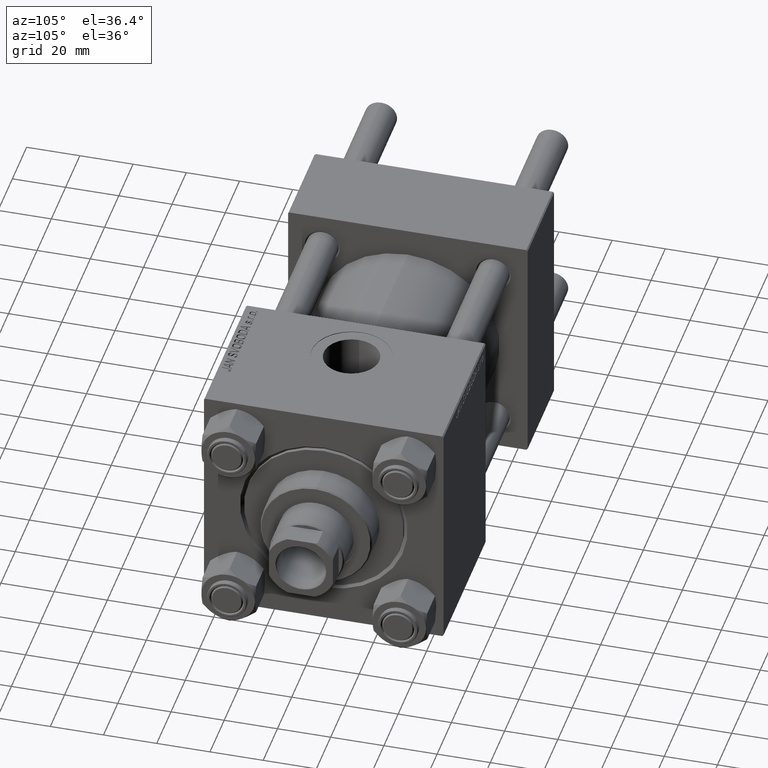
[diagram: clean part render]
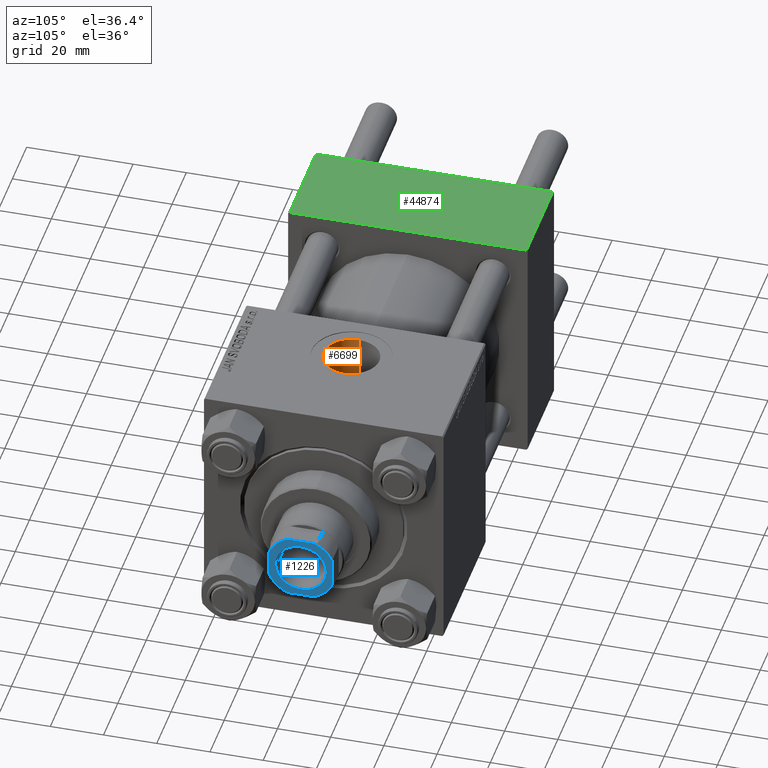
[diagram: same view with three faces highlighted in distinct colors, each labeled with its STEP entity id]
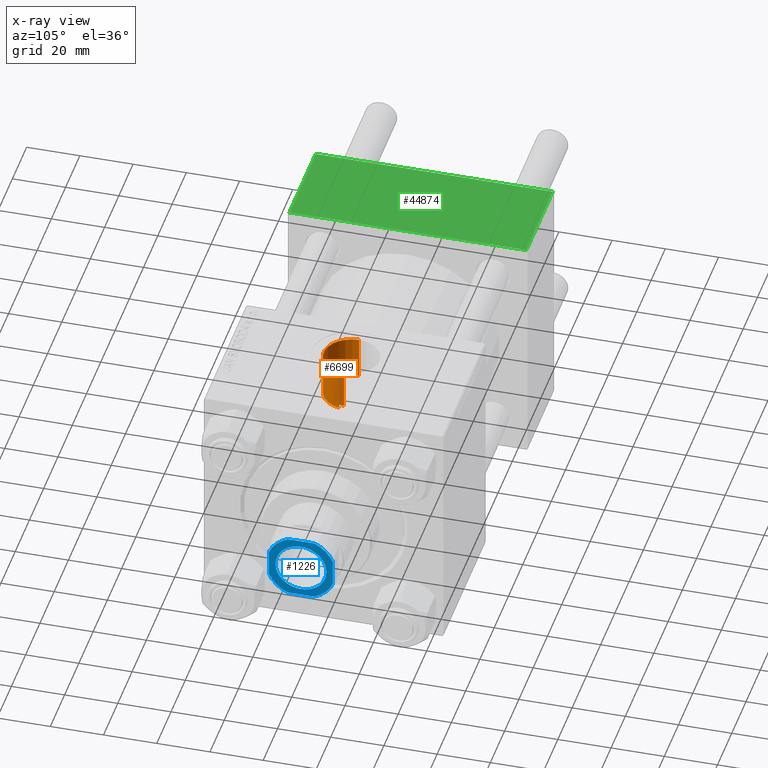
[diagram: x-ray of the same camera — body ghosted, the three highlighted faces saturated]
A machine part, auxiliary view with three faces highlighted in distinct colors.
The next image is the same camera in x-ray (body ghosted, the three faces saturated) — at least one of them is partly hidden behind the body in this view.
Their STEP definitions:

[orange] entity #6699 — the highlighted cylindrical surface (edge-blend (fillet) strip) has radius 10.48 mm, axis along (0, 0, -1).
#297 = DIRECTION ( 'NONE',  ( -0.000000000000000000, -0.000000000000000000, 1.000000000000000000 ) ) ;
#653 = EDGE_CURVE ( 'NONE', #38131, #39884, #43769, .T. ) ;
#1130 = ORIENTED_EDGE ( 'NONE', *, *, #653, .F. ) ;
#1406 = DIRECTION ( 'NONE',  ( 0.000000000000000000, 0.000000000000000000, -1.000000000000000000 ) ) ;
#2041 = CARTESIAN_POINT ( 'NONE',  ( 126.4210485436893237, -1.289340916902936396, 29.97924172559974210 ) ) ;
#2803 = CIRCLE ( 'NONE', #47059, 10.48000000000000398 ) ;
#2824 = DIRECTION ( 'NONE',  ( -0.000000000000000000, -0.000000000000000000, -1.000000000000000000 ) ) ;
#3183 = CARTESIAN_POINT ( 'NONE',  ( 105.5199999999999960, -6.938893903907227589E-15, 44.79999999999999005 ) ) ;
#3203 = ORIENTED_EDGE ( 'NONE', *, *, #15543, .F. ) ;
#6699 = ADVANCED_FACE ( 'NONE', ( #9166 ), #47954, .F. ) ;
#6996 = ORIENTED_EDGE ( 'NONE', *, *, #28028, .T. ) ;
#7841 = CARTESIAN_POINT ( 'NONE',  ( 126.2999999999999972, -1.934011375354403928, 67.79999999999999716 ) ) ;
#8244 = ORIENTED_EDGE ( 'NONE', *, *, #8788, .T. ) ;
#8387 = DIRECTION ( 'NONE',  ( 0.000000000000000000, 0.000000000000000000, 1.000000000000000000 ) ) ;
#8788 = EDGE_CURVE ( 'NONE', #21145, #31034, #10842, .T. ) ;
#9166 = FACE_OUTER_BOUND ( 'NONE', #16298, .T. ) ;
#10842 = LINE ( 'NONE', #44579, #21041 ) ;
#12644 = CARTESIAN_POINT ( 'NONE',  ( 126.4800000000000040, -0.6446704584514658665, 30.00000000000000000 ) ) ;
#15058 = VECTOR ( 'NONE', #1406, 1000.000000000000000 ) ;
#15295 = EDGE_CURVE ( 'NONE', #32601, #38131, #2803, .T. ) ;
#15543 = EDGE_CURVE ( 'NONE', #21145, #32694, #47844, .T. ) ;
#16298 = EDGE_LOOP ( 'NONE', ( #3203, #8244, #6996, #1130, #34910, #16418 ) ) ;
#16418 = ORIENTED_EDGE ( 'NONE', *, *, #21393, .F. ) ;
#18992 = DIRECTION ( 'NONE',  ( 1.000000000000000000, 0.000000000000000000, 0.000000000000000000 ) ) ;
#20211 = CARTESIAN_POINT ( 'NONE',  ( 126.4800000000000040, 3.352779466116923030E-15, 30.00000000000000000 ) ) ;
#20553 = LINE ( 'NONE', #35920, #15058 ) ;
#21041 = VECTOR ( 'NONE', #41566, 1000.000000000000000 ) ;
#21145 = VERTEX_POINT ( 'NONE', #29164 ) ;
#21393 = EDGE_CURVE ( 'NONE', #32694, #32601, #20553, .T. ) ;
#24558 = CARTESIAN_POINT ( 'NONE',  ( 116.0000000000000000, -6.938893903907227589E-15, 67.79999999999999716 ) ) ;
#26934 = AXIS2_PLACEMENT_3D ( 'NONE', #37332, #2824, #33558 ) ;
#27877 = B_SPLINE_CURVE_WITH_KNOTS ( 'NONE', 3,
 ( #31808, #12644, #2041, #28502 ),
 .UNSPECIFIED., .F., .F.,
 ( 4, 4 ),
 ( 0.001934011375354386698, 0.003868022750708794213 ),
 .UNSPECIFIED. ) ;
#28028 = EDGE_CURVE ( 'NONE', #31034, #39884, #27877, .T. ) ;
#28081 = DIRECTION ( 'NONE',  ( 0.000000000000000000, 0.000000000000000000, -1.000000000000000000 ) ) ;
#28502 = CARTESIAN_POINT ( 'NONE',  ( 126.2999999999999972, -1.934011375354403928, 29.93759509379468753 ) ) ;
#29164 = CARTESIAN_POINT ( 'NONE',  ( 126.4800000000000040, -5.655464058400802100E-15, 44.79999999999999005 ) ) ;
#30591 = CARTESIAN_POINT ( 'NONE',  ( 116.0000000000000000, -6.938893903907227589E-15, 28.59999999999998721 ) ) ;
#30628 = AXIS2_PLACEMENT_3D ( 'NONE', #24558, #28081, #48207 ) ;
#31034 = VERTEX_POINT ( 'NONE', #20211 ) ;
#31808 = CARTESIAN_POINT ( 'NONE',  ( 126.4800000000000040, 3.352779466116923030E-15, 30.00000000000000000 ) ) ;
#32601 = VERTEX_POINT ( 'NONE', #38180 ) ;
#32694 = VERTEX_POINT ( 'NONE', #3183 ) ;
#33558 = DIRECTION ( 'NONE',  ( 1.000000000000000000, 0.000000000000000000, 0.000000000000000000 ) ) ;
#34910 = ORIENTED_EDGE ( 'NONE', *, *, #15295, .F. ) ;
#35259 = VECTOR ( 'NONE', #297, 1000.000000000000000 ) ;
#35920 = CARTESIAN_POINT ( 'NONE',  ( 105.5199999999999960, -6.938893903907227589E-15, 67.79999999999999716 ) ) ;
#37332 = CARTESIAN_POINT ( 'NONE',  ( 116.0000000000000000, -6.938893903907227589E-15, 44.79999999999999005 ) ) ;
#38131 = VERTEX_POINT ( 'NONE', #41127 ) ;
#38180 = CARTESIAN_POINT ( 'NONE',  ( 105.5199999999999960, -6.938893903907227589E-15, 28.59999999999998721 ) ) ;
#38877 = CARTESIAN_POINT ( 'NONE',  ( 126.2999999999999972, -1.934011375354403928, 29.93759509379468753 ) ) ;
#39884 = VERTEX_POINT ( 'NONE', #38877 ) ;
#41127 = CARTESIAN_POINT ( 'NONE',  ( 126.2999999999999972, -1.934011375354403928, 28.59999999999998721 ) ) ;
#41566 = DIRECTION ( 'NONE',  ( 0.000000000000000000, 0.000000000000000000, -1.000000000000000000 ) ) ;
#43769 = LINE ( 'NONE', #7841, #35259 ) ;
#44579 = CARTESIAN_POINT ( 'NONE',  ( 126.4800000000000040, -5.655464058400801311E-15, 67.79999999999999716 ) ) ;
#47059 = AXIS2_PLACEMENT_3D ( 'NONE', #30591, #8387, #18992 ) ;
#47844 = CIRCLE ( 'NONE', #26934, 10.48000000000000398 ) ;
#47954 = CYLINDRICAL_SURFACE ( 'NONE', #30628, 10.48000000000000398 ) ;
#48207 = DIRECTION ( 'NONE',  ( -1.000000000000000000, 0.000000000000000000, 0.000000000000000000 ) ) ;

[blue] entity #1226 — the highlighted planar face has unit normal (1, 0, -0).
#582 = CARTESIAN_POINT ( 'NONE',  ( 9.550000000000030909, 0.000000000000000000, 150.0000000000000000 ) ) ;
#855 = CIRCLE ( 'NONE', #7290, 12.99999999999999289 ) ;
#1226 = ADVANCED_FACE ( 'NONE', ( #32324, #44633 ), #24768, .T. ) ;
#2163 = DIRECTION ( 'NONE',  ( -0.000000000000000000, 0.000000000000000000, 1.000000000000000000 ) ) ;
#2797 = DIRECTION ( 'NONE',  ( 1.000000000000000000, 0.000000000000000000, 0.000000000000000000 ) ) ;
#4310 = CARTESIAN_POINT ( 'NONE',  ( 11.99999999999999822, 4.999999999999885425, 150.0000000000000000 ) ) ;
#5485 = EDGE_CURVE ( 'NONE', #47178, #8607, #39410, .T. ) ;
#5617 = CARTESIAN_POINT ( 'NONE',  ( -12.00000000000000000, 11.99999999999999645, 150.0000000000000000 ) ) ;
#6123 = LINE ( 'NONE', #5617, #10189 ) ;
#6314 = CARTESIAN_POINT ( 'NONE',  ( -9.550000000000030909, 1.169537693185725911E-15, 150.0000000000000000 ) ) ;
#6350 = CARTESIAN_POINT ( 'NONE',  ( 0.000000000000000000, 0.000000000000000000, 150.0000000000000000 ) ) ;
#7066 = DIRECTION ( 'NONE',  ( 1.000000000000000000, 0.000000000000000000, 0.000000000000000000 ) ) ;
#7290 = AXIS2_PLACEMENT_3D ( 'NONE', #30159, #15025, #18809 ) ;
#7738 = ORIENTED_EDGE ( 'NONE', *, *, #28617, .T. ) ;
#7790 = CIRCLE ( 'NONE', #25493, 9.550000000000030909 ) ;
#8451 = EDGE_LOOP ( 'NONE', ( #45797, #15811, #11006, #40101, #38491, #43081, #7738, #35660 ) ) ;
#8607 = VERTEX_POINT ( 'NONE', #14734 ) ;
#10056 = VERTEX_POINT ( 'NONE', #37554 ) ;
#10189 = VECTOR ( 'NONE', #21501, 1000.000000000000000 ) ;
#10309 = DIRECTION ( 'NONE',  ( 1.000000000000000000, 0.000000000000000000, 0.000000000000000000 ) ) ;
#10440 = CARTESIAN_POINT ( 'NONE',  ( 12.00000000000000178, -5.000000000000104805, 150.0000000000000000 ) ) ;
#10792 = VERTEX_POINT ( 'NONE', #6314 ) ;
#10992 = VERTEX_POINT ( 'NONE', #10440 ) ;
#11006 = ORIENTED_EDGE ( 'NONE', *, *, #47522, .T. ) ;
#11244 = VERTEX_POINT ( 'NONE', #45651 ) ;
#12026 = AXIS2_PLACEMENT_3D ( 'NONE', #40823, #33028, #2797 ) ;
#13170 = DIRECTION ( 'NONE',  ( -0.000000000000000000, 0.000000000000000000, 1.000000000000000000 ) ) ;
#13498 = CARTESIAN_POINT ( 'NONE',  ( 0.000000000000000000, 0.000000000000000000, 150.0000000000000000 ) ) ;
#13856 = LINE ( 'NONE', #21666, #15610 ) ;
#14196 = DIRECTION ( 'NONE',  ( 1.000000000000000000, 0.000000000000000000, 0.000000000000000000 ) ) ;
#14734 = CARTESIAN_POINT ( 'NONE',  ( 4.999999999999889866, 11.99999999999999645, 150.0000000000000000 ) ) ;
#15025 = DIRECTION ( 'NONE',  ( -0.000000000000000000, 0.000000000000000000, 1.000000000000000000 ) ) ;
#15610 = VECTOR ( 'NONE', #41056, 1000.000000000000000 ) ;
#15811 = ORIENTED_EDGE ( 'NONE', *, *, #5485, .T. ) ;
#16538 = ORIENTED_EDGE ( 'NONE', *, *, #46200, .T. ) ;
#18809 = DIRECTION ( 'NONE',  ( 1.000000000000000000, 0.000000000000000000, 0.000000000000000000 ) ) ;
#19271 = EDGE_CURVE ( 'NONE', #10792, #36055, #7790, .T. ) ;
#20399 = CIRCLE ( 'NONE', #48545, 9.550000000000030909 ) ;
#21501 = DIRECTION ( 'NONE',  ( 7.228014483236695816E-17, -1.000000000000000000, 0.000000000000000000 ) ) ;
#21558 = AXIS2_PLACEMENT_3D ( 'NONE', #41547, #25948, #10309 ) ;
#21666 = CARTESIAN_POINT ( 'NONE',  ( 11.99999999999999645, 11.99999999999999645, 150.0000000000000000 ) ) ;
#22762 = CARTESIAN_POINT ( 'NONE',  ( -11.99999999999999822, -12.00000000000000355, 150.0000000000000000 ) ) ;
#24356 = EDGE_CURVE ( 'NONE', #46097, #30580, #6123, .T. ) ;
#24768 = PLANE ( 'NONE',  #38520 ) ;
#25493 = AXIS2_PLACEMENT_3D ( 'NONE', #32781, #48129, #7066 ) ;
#25948 = DIRECTION ( 'NONE',  ( -0.000000000000000000, 0.000000000000000000, 1.000000000000000000 ) ) ;
#26347 = CARTESIAN_POINT ( 'NONE',  ( -12.00000000000000000, -5.000000000000094147, 150.0000000000000000 ) ) ;
#27336 = AXIS2_PLACEMENT_3D ( 'NONE', #13498, #2163, #32163 ) ;
#27518 = EDGE_CURVE ( 'NONE', #30580, #31896, #43280, .T. ) ;
#28617 = EDGE_CURVE ( 'NONE', #31896, #11244, #41402, .T. ) ;
#29627 = EDGE_LOOP ( 'NONE', ( #16538, #30189 ) ) ;
#30159 = CARTESIAN_POINT ( 'NONE',  ( 0.000000000000000000, 0.000000000000000000, 150.0000000000000000 ) ) ;
#30189 = ORIENTED_EDGE ( 'NONE', *, *, #19271, .T. ) ;
#30580 = VERTEX_POINT ( 'NONE', #26347 ) ;
#31162 = EDGE_CURVE ( 'NONE', #11244, #10992, #42590, .T. ) ;
#31896 = VERTEX_POINT ( 'NONE', #34592 ) ;
#32163 = DIRECTION ( 'NONE',  ( 1.000000000000000000, 0.000000000000000000, 0.000000000000000000 ) ) ;
#32324 = FACE_BOUND ( 'NONE', #29627, .T. ) ;
#32781 = CARTESIAN_POINT ( 'NONE',  ( 0.000000000000000000, 0.000000000000000000, 150.0000000000000000 ) ) ;
#32880 = LINE ( 'NONE', #47734, #38121 ) ;
#33028 = DIRECTION ( 'NONE',  ( -0.000000000000000000, 0.000000000000000000, 1.000000000000000000 ) ) ;
#33379 = EDGE_CURVE ( 'NONE', #10056, #46097, #855, .T. ) ;
#33560 = CARTESIAN_POINT ( 'NONE',  ( -12.00000000000000000, 4.999999999999979572, 150.0000000000000000 ) ) ;
#34592 = CARTESIAN_POINT ( 'NONE',  ( -5.000000000000085265, -12.00000000000000355, 150.0000000000000000 ) ) ;
#34800 = CARTESIAN_POINT ( 'NONE',  ( 0.000000000000000000, 0.000000000000000000, 150.0000000000000000 ) ) ;
#35660 = ORIENTED_EDGE ( 'NONE', *, *, #31162, .T. ) ;
#35969 = DIRECTION ( 'NONE',  ( 1.000000000000000000, 0.000000000000000000, 0.000000000000000000 ) ) ;
#36055 = VERTEX_POINT ( 'NONE', #582 ) ;
#36898 = DIRECTION ( 'NONE',  ( -1.000000000000000000, -0.000000000000000000, -0.000000000000000000 ) ) ;
#37554 = CARTESIAN_POINT ( 'NONE',  ( -4.999999999999987566, 11.99999999999999645, 150.0000000000000000 ) ) ;
#38121 = VECTOR ( 'NONE', #36898, 1000.000000000000000 ) ;
#38491 = ORIENTED_EDGE ( 'NONE', *, *, #24356, .T. ) ;
#38520 = AXIS2_PLACEMENT_3D ( 'NONE', #6350, #13170, #40612 ) ;
#38570 = DIRECTION ( 'NONE',  ( 0.000000000000000000, -0.000000000000000000, -1.000000000000000000 ) ) ;
#39410 = CIRCLE ( 'NONE', #27336, 12.99999999999995381 ) ;
#40101 = ORIENTED_EDGE ( 'NONE', *, *, #33379, .T. ) ;
#40612 = DIRECTION ( 'NONE',  ( 1.000000000000000000, 0.000000000000000000, 0.000000000000000000 ) ) ;
#40823 = CARTESIAN_POINT ( 'NONE',  ( 0.000000000000000000, 0.000000000000000000, 150.0000000000000000 ) ) ;
#41056 = DIRECTION ( 'NONE',  ( -2.891205793294678326E-16, 1.000000000000000000, -0.000000000000000000 ) ) ;
#41402 = LINE ( 'NONE', #22762, #43311 ) ;
#41547 = CARTESIAN_POINT ( 'NONE',  ( 0.000000000000000000, 0.000000000000000000, 150.0000000000000000 ) ) ;
#42590 = CIRCLE ( 'NONE', #12026, 13.00000000000004263 ) ;
#43081 = ORIENTED_EDGE ( 'NONE', *, *, #27518, .T. ) ;
#43280 = CIRCLE ( 'NONE', #21558, 13.00000000000003553 ) ;
#43311 = VECTOR ( 'NONE', #14196, 1000.000000000000000 ) ;
#44633 = FACE_OUTER_BOUND ( 'NONE', #8451, .T. ) ;
#45651 = CARTESIAN_POINT ( 'NONE',  ( 5.000000000000101252, -12.00000000000000355, 150.0000000000000000 ) ) ;
#45797 = ORIENTED_EDGE ( 'NONE', *, *, #48170, .T. ) ;
#46097 = VERTEX_POINT ( 'NONE', #33560 ) ;
#46200 = EDGE_CURVE ( 'NONE', #36055, #10792, #20399, .T. ) ;
#47178 = VERTEX_POINT ( 'NONE', #4310 ) ;
#47522 = EDGE_CURVE ( 'NONE', #8607, #10056, #32880, .T. ) ;
#47734 = CARTESIAN_POINT ( 'NONE',  ( -12.00000000000000000, 11.99999999999999645, 150.0000000000000000 ) ) ;
#48129 = DIRECTION ( 'NONE',  ( 0.000000000000000000, -0.000000000000000000, -1.000000000000000000 ) ) ;
#48170 = EDGE_CURVE ( 'NONE', #10992, #47178, #13856, .T. ) ;
#48545 = AXIS2_PLACEMENT_3D ( 'NONE', #34800, #38570, #35969 ) ;

[green] entity #44874 — the highlighted planar face has unit normal (0, 0, -1).
#600 = CARTESIAN_POINT ( 'NONE',  ( 37.00000000000000000, -44.49999999999998579, 45.00000000000000000 ) ) ;
#1437 = ORIENTED_EDGE ( 'NONE', *, *, #48502, .F. ) ;
#1504 = DIRECTION ( 'NONE',  ( 0.000000000000000000, 1.541976423090495633E-16, -1.000000000000000000 ) ) ;
#2741 = VECTOR ( 'NONE', #5473, 1000.000000000000000 ) ;
#3490 = ORIENTED_EDGE ( 'NONE', *, *, #49749, .T. ) ;
#5473 = DIRECTION ( 'NONE',  ( 0.000000000000000000, -1.000000000000000000, -1.541976423090495387E-16 ) ) ;
#6454 = ORIENTED_EDGE ( 'NONE', *, *, #19380, .T. ) ;
#6821 = CARTESIAN_POINT ( 'NONE',  ( 0.000000000000000000, 44.49999999999998579, 45.00000000000001421 ) ) ;
#11472 = AXIS2_PLACEMENT_3D ( 'NONE', #47841, #1504, #47110 ) ;
#15516 = VERTEX_POINT ( 'NONE', #15588 ) ;
#15588 = CARTESIAN_POINT ( 'NONE',  ( 0.000000000000000000, -44.49999999999995737, 45.00000000000000000 ) ) ;
#16225 = EDGE_CURVE ( 'NONE', #15516, #31533, #46193, .T. ) ;
#16528 = CARTESIAN_POINT ( 'NONE',  ( 0.000000000000000000, 44.49999999999998579, 45.00000000000001421 ) ) ;
#17662 = VERTEX_POINT ( 'NONE', #16528 ) ;
#19380 = EDGE_CURVE ( 'NONE', #26673, #17662, #41335, .T. ) ;
#24312 = LINE ( 'NONE', #40399, #40580 ) ;
#26673 = VERTEX_POINT ( 'NONE', #37260 ) ;
#27792 = EDGE_LOOP ( 'NONE', ( #3490, #40164, #1437, #6454 ) ) ;
#27970 = PLANE ( 'NONE',  #11472 ) ;
#31533 = VERTEX_POINT ( 'NONE', #48066 ) ;
#31879 = DIRECTION ( 'NONE',  ( 0.000000000000000000, -1.000000000000000000, -1.541976423090495387E-16 ) ) ;
#35133 = VECTOR ( 'NONE', #37560, 1000.000000000000000 ) ;
#36259 = FACE_OUTER_BOUND ( 'NONE', #27792, .T. ) ;
#37260 = CARTESIAN_POINT ( 'NONE',  ( 37.00000000000000000, 44.49999999999998579, 45.00000000000001421 ) ) ;
#37560 = DIRECTION ( 'NONE',  ( -1.000000000000000000, 0.000000000000000000, 0.000000000000000000 ) ) ;
#39991 = CARTESIAN_POINT ( 'NONE',  ( 37.00000000000000000, 44.99999999999998579, 45.00000000000001421 ) ) ;
#40164 = ORIENTED_EDGE ( 'NONE', *, *, #16225, .T. ) ;
#40399 = CARTESIAN_POINT ( 'NONE',  ( 0.000000000000000000, 44.99999999999998579, 45.00000000000001421 ) ) ;
#40580 = VECTOR ( 'NONE', #31879, 1000.000000000000000 ) ;
#41335 = LINE ( 'NONE', #6821, #35133 ) ;
#42168 = DIRECTION ( 'NONE',  ( 1.000000000000000000, 0.000000000000000000, 0.000000000000000000 ) ) ;
#43842 = VECTOR ( 'NONE', #42168, 1000.000000000000000 ) ;
#44260 = LINE ( 'NONE', #39991, #2741 ) ;
#44874 = ADVANCED_FACE ( 'NONE', ( #36259 ), #27970, .F. ) ;
#46193 = LINE ( 'NONE', #600, #43842 ) ;
#47110 = DIRECTION ( 'NONE',  ( 0.000000000000000000, 1.000000000000000000, 1.541976423090495633E-16 ) ) ;
#47841 = CARTESIAN_POINT ( 'NONE',  ( 37.00000000000000000, 44.99999999999998579, 45.00000000000001421 ) ) ;
#48066 = CARTESIAN_POINT ( 'NONE',  ( 37.00000000000000000, -44.49999999999995737, 45.00000000000000000 ) ) ;
#48502 = EDGE_CURVE ( 'NONE', #26673, #31533, #44260, .T. ) ;
#49749 = EDGE_CURVE ( 'NONE', #17662, #15516, #24312, .T. ) ;